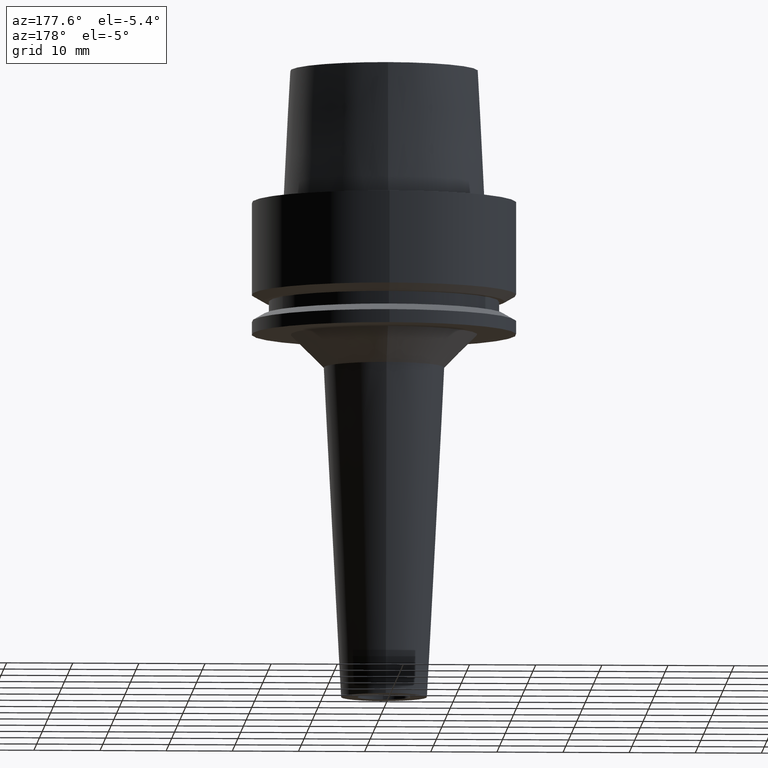
[diagram: clean part render]
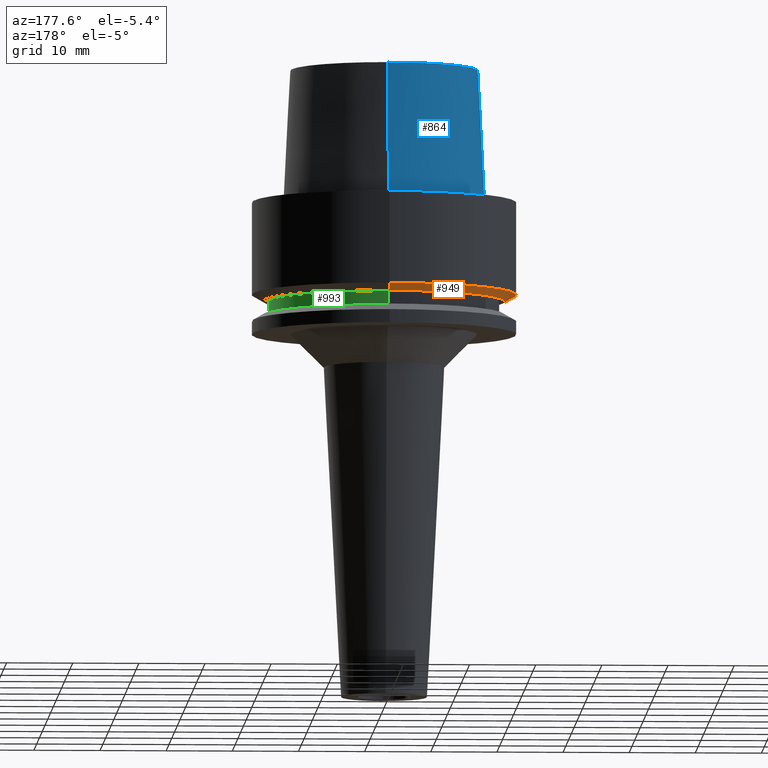
[diagram: same view with three faces highlighted in distinct colors, each labeled with its STEP entity id]
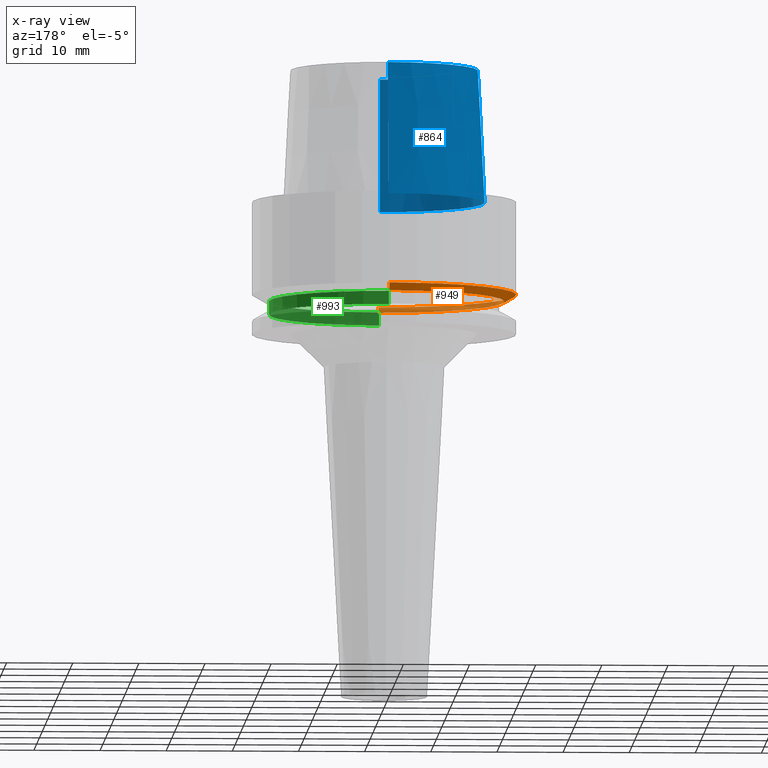
[diagram: x-ray of the same camera — body ghosted, the three highlighted faces saturated]
A machine part, auxiliary view with three faces highlighted in distinct colors.
The next image is the same camera in x-ray (body ghosted, the three faces saturated) — at least one of them is partly hidden behind the body in this view.
Their STEP definitions:

[orange] entity #949 — the highlighted conical surface has half-angle 60 deg.
#110=DIRECTION('',(0.E0,-8.660254037842E-1,-5.000000000005E-1));
#111=VECTOR('',#110,2.041451889235E0);
#112=CARTESIAN_POINT('',(0.E0,2.E1,-1.397927405538E1));
#113=LINE('',#112,#111);
#125=CARTESIAN_POINT('',(0.E0,0.E0,-1.397927405538E1));
#126=DIRECTION('',(0.E0,0.E0,1.E0));
#127=DIRECTION('',(0.E0,1.E0,0.E0));
#128=AXIS2_PLACEMENT_3D('',#125,#126,#127);
#133=DIRECTION('',(0.E0,8.660254037842E-1,-5.000000000005E-1));
#134=VECTOR('',#133,2.041451889235E0);
#135=CARTESIAN_POINT('',(0.E0,-2.E1,-1.397927405538E1));
#136=LINE('',#135,#134);
#148=CARTESIAN_POINT('',(0.E0,0.E0,-1.5E1));
#149=DIRECTION('',(0.E0,0.E0,1.E0));
#150=DIRECTION('',(0.E0,1.E0,0.E0));
#151=AXIS2_PLACEMENT_3D('',#148,#149,#150);
#736=CARTESIAN_POINT('',(0.E0,2.E1,-1.397927405538E1));
#737=VERTEX_POINT('',#736);
#738=CARTESIAN_POINT('',(0.E0,-2.E1,-1.397927405538E1));
#739=VERTEX_POINT('',#738);
#740=CARTESIAN_POINT('',(0.E0,1.823205080332E1,-1.5E1));
#741=VERTEX_POINT('',#740);
#742=CARTESIAN_POINT('',(0.E0,-1.823205080332E1,-1.5E1));
#743=VERTEX_POINT('',#742);
#937=CARTESIAN_POINT('',(0.E0,0.E0,-1.448963702769E1));
#938=DIRECTION('',(0.E0,0.E0,1.E0));
#939=DIRECTION('',(0.E0,1.E0,0.E0));
#940=AXIS2_PLACEMENT_3D('',#937,#938,#939);
#941=CONICAL_SURFACE('',#940,1.911602540166E1,6.E1);
#942=ORIENTED_EDGE('',*,*,#927,.F.);
#943=ORIENTED_EDGE('',*,*,#904,.T.);
#944=ORIENTED_EDGE('',*,*,#931,.T.);
#946=ORIENTED_EDGE('',*,*,#945,.F.);
#947=EDGE_LOOP('',(#942,#943,#944,#946));
#948=FACE_OUTER_BOUND('',#947,.F.);
#129=CIRCLE('',#128,2.E1);
#152=CIRCLE('',#151,1.823205080332E1);
#904=EDGE_CURVE('',#737,#739,#129,.T.);
#927=EDGE_CURVE('',#737,#741,#113,.T.);
#931=EDGE_CURVE('',#739,#743,#136,.T.);
#945=EDGE_CURVE('',#741,#743,#152,.T.);
#949=ADVANCED_FACE('',(#948),#941,.T.);

[blue] entity #864 — the highlighted conical surface has half-angle 2.862 deg.
#17=CARTESIAN_POINT('',(0.E0,0.E0,2.E1));
#18=DIRECTION('',(0.E0,0.E0,-1.E0));
#19=DIRECTION('',(0.E0,-1.E0,0.E0));
#20=AXIS2_PLACEMENT_3D('',#17,#18,#19);
#50=DIRECTION('',(0.E0,-4.993752584497E-2,-9.987523434328E-1));
#51=VECTOR('',#50,2.002498430317E1);
#52=CARTESIAN_POINT('',(0.E0,-1.420000146306E1,2.E1));
#53=LINE('',#52,#51);
#57=DIRECTION('',(0.E0,4.993752584497E-2,-9.987523434328E-1));
#58=VECTOR('',#57,2.002498430317E1);
#59=CARTESIAN_POINT('',(0.E0,1.420000146306E1,2.E1));
#60=LINE('',#59,#58);
#88=CARTESIAN_POINT('',(0.E0,0.E0,6.821210263297E-13));
#89=DIRECTION('',(0.E0,0.E0,1.E0));
#90=DIRECTION('',(0.E0,1.E0,0.E0));
#91=AXIS2_PLACEMENT_3D('',#88,#89,#90);
#720=CARTESIAN_POINT('',(0.E0,-1.420000146306E1,2.E1));
#721=CARTESIAN_POINT('',(0.E0,1.420000146306E1,2.E1));
#722=VERTEX_POINT('',#720);
#723=VERTEX_POINT('',#721);
#728=CARTESIAN_POINT('',(0.E0,1.519999963424E1,3.801403636317E-13));
#729=VERTEX_POINT('',#728);
#730=CARTESIAN_POINT('',(0.E0,-1.519999963424E1,3.801403636317E-13));
#731=VERTEX_POINT('',#730);
#850=CARTESIAN_POINT('',(0.E0,0.E0,1.E1));
#851=DIRECTION('',(0.E0,0.E0,-1.E0));
#852=DIRECTION('',(0.E0,-1.E0,0.E0));
#853=AXIS2_PLACEMENT_3D('',#850,#851,#852);
#854=CONICAL_SURFACE('',#853,1.470000054865E1,2.8624E0);
#856=ORIENTED_EDGE('',*,*,#855,.F.);
#857=ORIENTED_EDGE('',*,*,#837,.F.);
#859=ORIENTED_EDGE('',*,*,#858,.T.);
#861=ORIENTED_EDGE('',*,*,#860,.F.);
#862=EDGE_LOOP('',(#856,#857,#859,#861));
#863=FACE_OUTER_BOUND('',#862,.F.);
#21=CIRCLE('',#20,1.420000146306E1);
#92=CIRCLE('',#91,1.519999963424E1);
#837=EDGE_CURVE('',#722,#723,#21,.T.);
#855=EDGE_CURVE('',#723,#729,#60,.T.);
#858=EDGE_CURVE('',#722,#731,#53,.T.);
#860=EDGE_CURVE('',#729,#731,#92,.T.);
#864=ADVANCED_FACE('',(#863),#854,.T.);

[green] entity #993 — the highlighted cylindrical surface (partial cylindrical patch) has radius 17.4 mm, axis along (0, 0, 1).
#164=CARTESIAN_POINT('',(0.E0,0.E0,-1.5E1));
#165=DIRECTION('',(0.E0,0.E0,-1.E0));
#166=DIRECTION('',(0.E0,1.E0,0.E0));
#167=AXIS2_PLACEMENT_3D('',#164,#165,#166);
#172=DIRECTION('',(0.E0,0.E0,-1.E0));
#173=VECTOR('',#172,2.E0);
#174=CARTESIAN_POINT('',(0.E0,-1.74E1,-1.5E1));
#175=LINE('',#174,#173);
#179=DIRECTION('',(0.E0,0.E0,-1.E0));
#180=VECTOR('',#179,2.E0);
#181=CARTESIAN_POINT('',(0.E0,1.74E1,-1.5E1));
#182=LINE('',#181,#180);
#202=CARTESIAN_POINT('',(0.E0,0.E0,-1.7E1));
#203=DIRECTION('',(0.E0,0.E0,1.E0));
#204=DIRECTION('',(0.E0,-1.E0,0.E0));
#205=AXIS2_PLACEMENT_3D('',#202,#203,#204);
#744=CARTESIAN_POINT('',(0.E0,-1.74E1,-1.5E1));
#745=CARTESIAN_POINT('',(0.E0,1.74E1,-1.5E1));
#746=VERTEX_POINT('',#744);
#747=VERTEX_POINT('',#745);
#748=CARTESIAN_POINT('',(0.E0,1.74E1,-1.7E1));
#749=VERTEX_POINT('',#748);
#750=CARTESIAN_POINT('',(0.E0,-1.74E1,-1.7E1));
#751=VERTEX_POINT('',#750);
#981=CARTESIAN_POINT('',(0.E0,0.E0,-7.975E1));
#982=DIRECTION('',(0.E0,0.E0,1.E0));
#983=DIRECTION('',(0.E0,1.E0,0.E0));
#984=AXIS2_PLACEMENT_3D('',#981,#982,#983);
#985=CYLINDRICAL_SURFACE('',#984,1.74E1);
#986=ORIENTED_EDGE('',*,*,#971,.T.);
#988=ORIENTED_EDGE('',*,*,#987,.F.);
#989=ORIENTED_EDGE('',*,*,#974,.F.);
#990=ORIENTED_EDGE('',*,*,#961,.F.);
#991=EDGE_LOOP('',(#986,#988,#989,#990));
#992=FACE_OUTER_BOUND('',#991,.F.);
#168=CIRCLE('',#167,1.74E1);
#206=CIRCLE('',#205,1.74E1);
#961=EDGE_CURVE('',#747,#746,#168,.T.);
#971=EDGE_CURVE('',#747,#749,#182,.T.);
#974=EDGE_CURVE('',#746,#751,#175,.T.);
#987=EDGE_CURVE('',#751,#749,#206,.T.);
#993=ADVANCED_FACE('',(#992),#985,.T.);